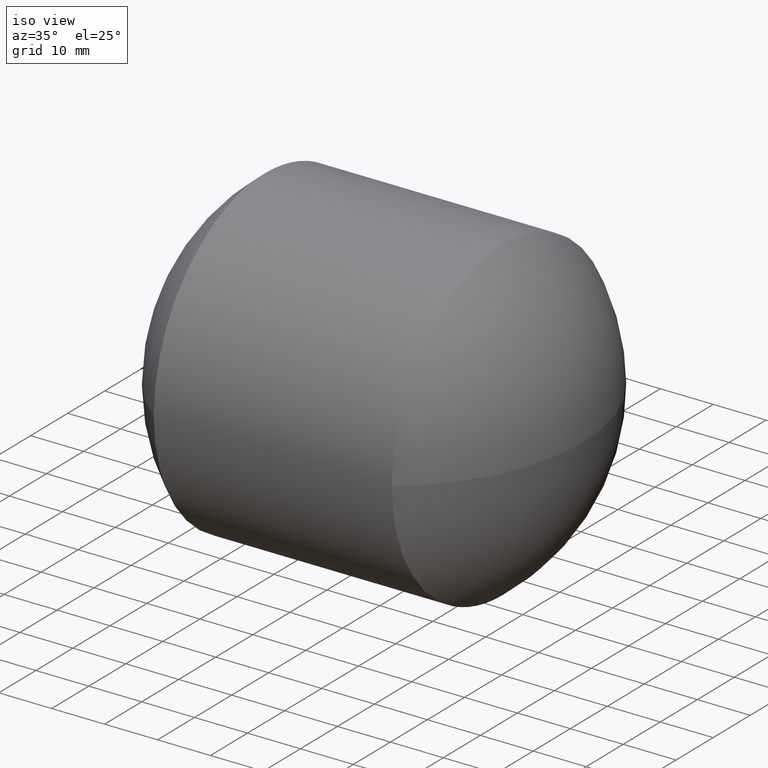
[diagram: clean part render]
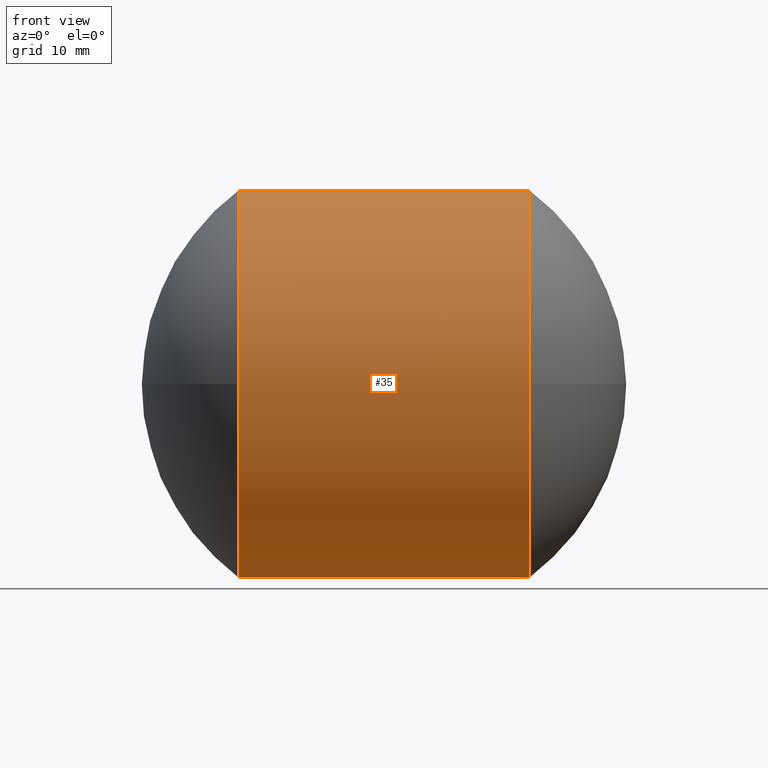
[diagram: tour spotlight — one face highlighted and labeled with its STEP entity id]
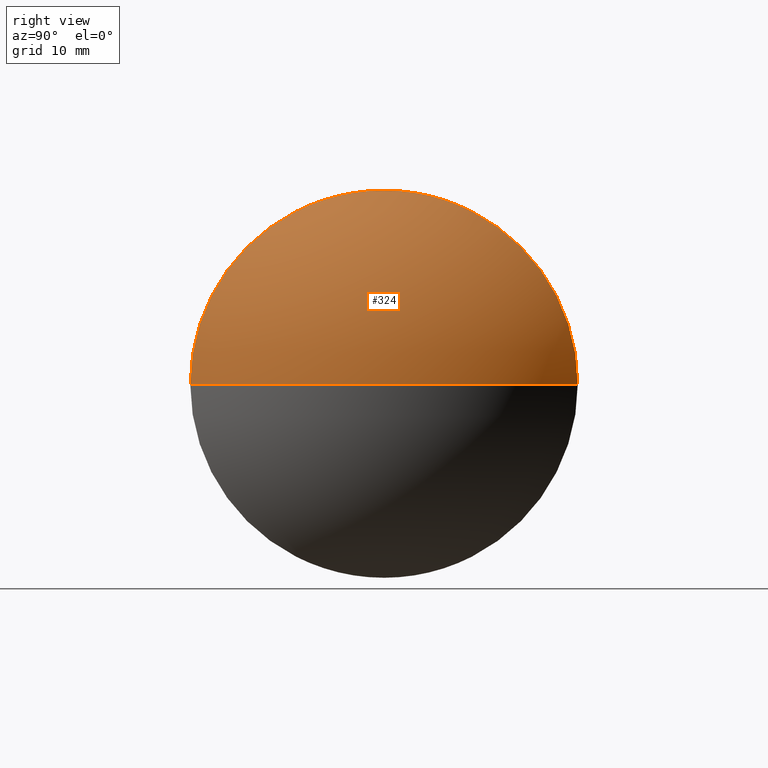
[diagram: tour spotlight — one face highlighted and labeled with its STEP entity id]
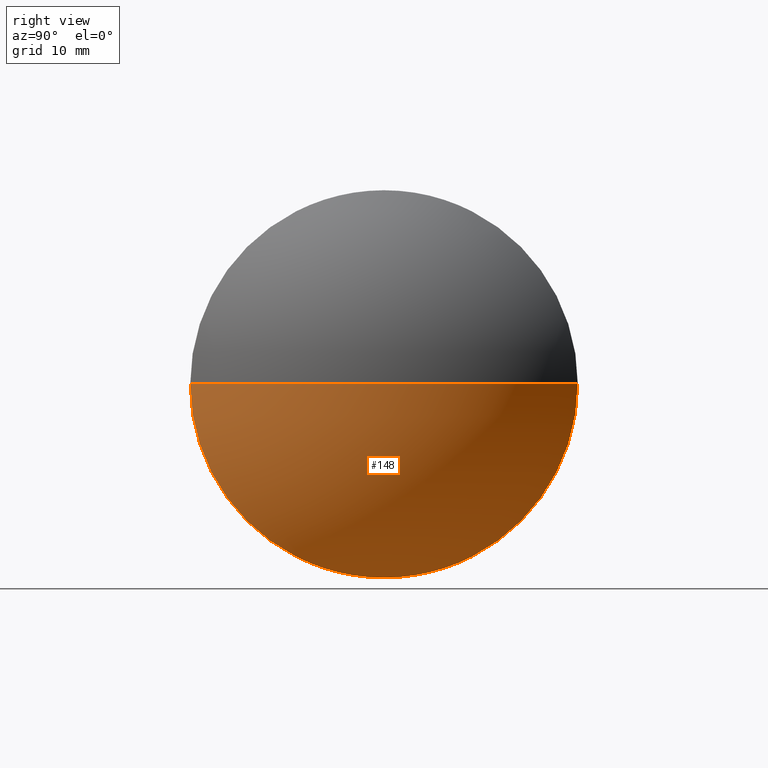
[diagram: tour spotlight — one face highlighted and labeled with its STEP entity id]
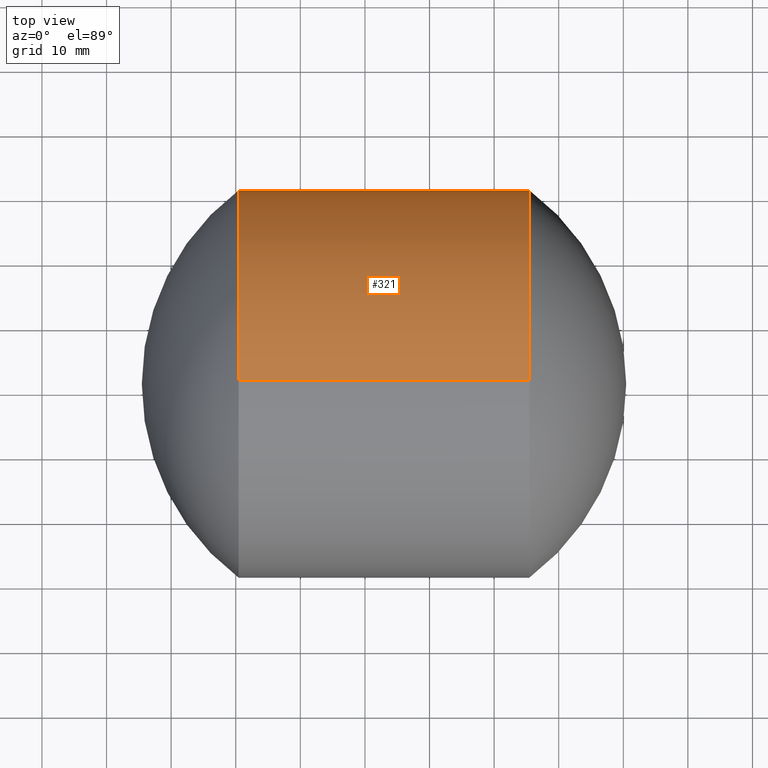
[diagram: tour spotlight — one face highlighted and labeled with its STEP entity id]
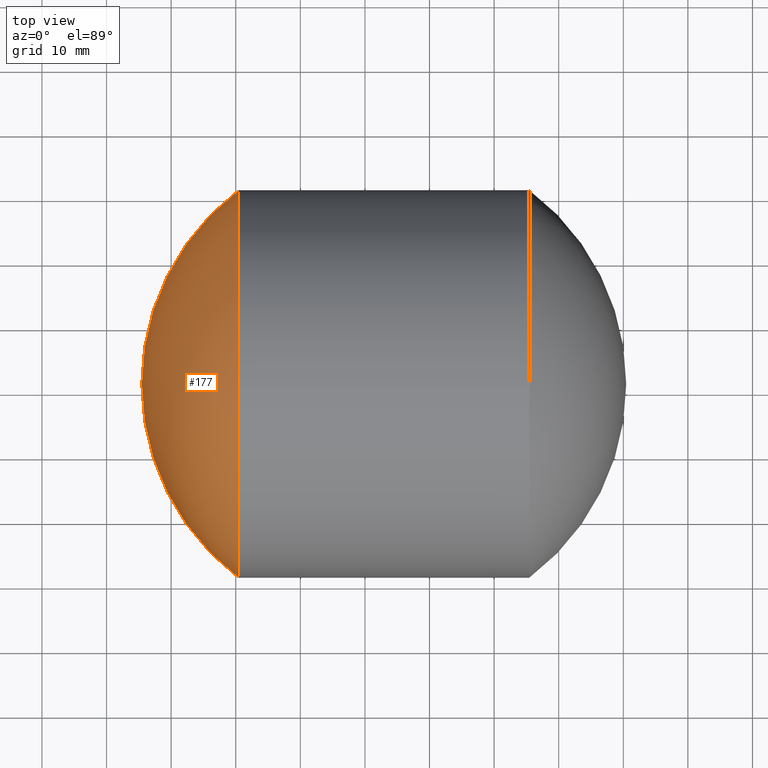
[diagram: tour spotlight — one face highlighted and labeled with its STEP entity id]
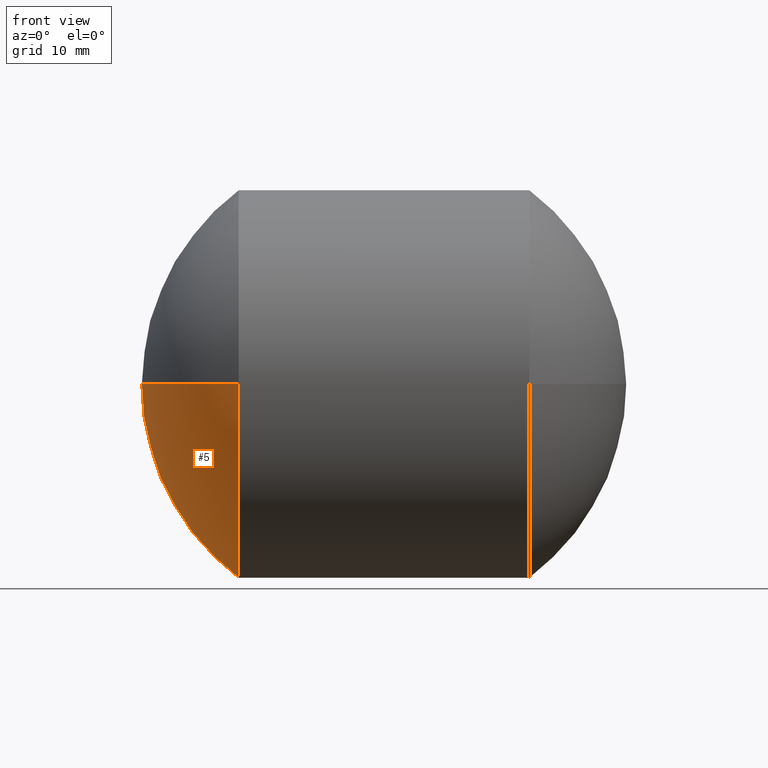
[diagram: tour spotlight — one face highlighted and labeled with its STEP entity id]
A machine part: a face-by-face anatomy tour. The part has 6 B-rep faces; the first image is the clean iso view, then the 6 largest visible faces are spotlighted one at a time (largest first), each with its STEP entity span.

Face 1 — front view, entity #35. In plain terms, the highlighted cylindrical surface (partial cylindrical patch) has radius 29.997 mm, axis along (-1, -0, -0).
Definition (entity closure, byte-faithful):
#1 = DIRECTION ( 'NONE',  ( -1.000000000000000000, -0.0000000000000000000, -0.0000000000000000000 ) ) ;
#6 = AXIS2_PLACEMENT_3D ( 'NONE', #30, #64, #172 ) ;
#14 = AXIS2_PLACEMENT_3D ( 'NONE', #259, #210, #273 ) ;
#18 = ORIENTED_EDGE ( 'NONE', *, *, #190, .F. ) ;
#24 = CARTESIAN_POINT ( 'NONE',  ( 3410.456490111853300, 1941.195797396160300, -29.99699999999982900 ) ) ;
#25 = CIRCLE ( 'NONE', #48, 29.99700000001004300 ) ;
#26 = CARTESIAN_POINT ( 'NONE',  ( 3389.118758004791700, 1941.195797396160300, 29.99700000000493800 ) ) ;
#30 = CARTESIAN_POINT ( 'NONE',  ( 3410.456490111853300, 1941.195797396160300, 0.0000000000000000000 ) ) ;
#35 = ADVANCED_FACE ( 'NONE', ( #158 ), #104, .T. ) ;
#38 = ORIENTED_EDGE ( 'NONE', *, *, #208, .T. ) ;
#40 = VECTOR ( 'NONE', #1, 1000.000000000000000 ) ;
#48 = AXIS2_PLACEMENT_3D ( 'NONE', #290, #341, #239 ) ;
#54 = VECTOR ( 'NONE', #320, 1000.000000000000000 ) ;
#57 = EDGE_CURVE ( 'NONE', #334, #108, #25, .T. ) ;
#64 = DIRECTION ( 'NONE',  ( -1.000000000000000000, -0.0000000000000000000, -0.0000000000000000000 ) ) ;
#74 = CARTESIAN_POINT ( 'NONE',  ( 3410.456490111853300, 1941.195797396160300, 29.99699999999982900 ) ) ;
#95 = CARTESIAN_POINT ( 'NONE',  ( 3410.456490111853300, 1911.198797396160400, -3.673573003402300800E-015 ) ) ;
#98 = VERTEX_POINT ( 'NONE', #24 ) ;
#102 = CIRCLE ( 'NONE', #122, 29.99699999999982900 ) ;
#104 = CYLINDRICAL_SURFACE ( 'NONE', #157, 29.99700000000493800 ) ;
#106 = ORIENTED_EDGE ( 'NONE', *, *, #110, .T. ) ;
#108 = VERTEX_POINT ( 'NONE', #340 ) ;
#110 = EDGE_CURVE ( 'NONE', #279, #284, #275, .T. ) ;
#112 = DIRECTION ( 'NONE',  ( -1.000000000000000000, -0.0000000000000000000, -0.0000000000000000000 ) ) ;
#122 = AXIS2_PLACEMENT_3D ( 'NONE', #304, #306, #153 ) ;
#142 = CARTESIAN_POINT ( 'NONE',  ( 3455.451990111839700, 1941.195797396160300, -29.99700000001004300 ) ) ;
#151 = CARTESIAN_POINT ( 'NONE',  ( 3455.451990111839700, 1941.195797396160300, 29.99700000001004300 ) ) ;
#153 = DIRECTION ( 'NONE',  ( 0.0000000000000000000, 0.0000000000000000000, 1.000000000000000000 ) ) ;
#155 = LINE ( 'NONE', #204, #54 ) ;
#157 = AXIS2_PLACEMENT_3D ( 'NONE', #342, #112, #166 ) ;
#158 = FACE_OUTER_BOUND ( 'NONE', #309, .T. ) ;
#166 = DIRECTION ( 'NONE',  ( 0.0000000000000000000, 0.0000000000000000000, 1.000000000000000000 ) ) ;
#172 = DIRECTION ( 'NONE',  ( 0.0000000000000000000, 0.0000000000000000000, 1.000000000000000000 ) ) ;
#178 = CIRCLE ( 'NONE', #6, 29.99699999999982900 ) ;
#190 = EDGE_CURVE ( 'NONE', #330, #284, #178, .T. ) ;
#196 = ORIENTED_EDGE ( 'NONE', *, *, #269, .F. ) ;
#204 = CARTESIAN_POINT ( 'NONE',  ( 3389.118758004791700, 1941.195797396160300, -29.99700000000493800 ) ) ;
#208 = EDGE_CURVE ( 'NONE', #108, #279, #262, .T. ) ;
#210 = DIRECTION ( 'NONE',  ( -1.000000000000000000, -0.0000000000000000000, -0.0000000000000000000 ) ) ;
#217 = ORIENTED_EDGE ( 'NONE', *, *, #339, .F. ) ;
#239 = DIRECTION ( 'NONE',  ( 0.0000000000000000000, 0.0000000000000000000, 1.000000000000000000 ) ) ;
#259 = CARTESIAN_POINT ( 'NONE',  ( 3455.451990111839700, 1941.195797396160300, 0.0000000000000000000 ) ) ;
#262 = CIRCLE ( 'NONE', #14, 29.99700000001004300 ) ;
#269 = EDGE_CURVE ( 'NONE', #98, #330, #102, .T. ) ;
#273 = DIRECTION ( 'NONE',  ( 0.0000000000000000000, 0.0000000000000000000, 1.000000000000000000 ) ) ;
#275 = LINE ( 'NONE', #26, #40 ) ;
#279 = VERTEX_POINT ( 'NONE', #151 ) ;
#284 = VERTEX_POINT ( 'NONE', #74 ) ;
#290 = CARTESIAN_POINT ( 'NONE',  ( 3455.451990111839700, 1941.195797396160300, 0.0000000000000000000 ) ) ;
#303 = ORIENTED_EDGE ( 'NONE', *, *, #57, .T. ) ;
#304 = CARTESIAN_POINT ( 'NONE',  ( 3410.456490111853300, 1941.195797396160300, 0.0000000000000000000 ) ) ;
#306 = DIRECTION ( 'NONE',  ( -1.000000000000000000, -0.0000000000000000000, -0.0000000000000000000 ) ) ;
#309 = EDGE_LOOP ( 'NONE', ( #217, #303, #38, #106, #18, #196 ) ) ;
#320 = DIRECTION ( 'NONE',  ( -1.000000000000000000, -0.0000000000000000000, -0.0000000000000000000 ) ) ;
#330 = VERTEX_POINT ( 'NONE', #95 ) ;
#334 = VERTEX_POINT ( 'NONE', #142 ) ;
#339 = EDGE_CURVE ( 'NONE', #334, #98, #155, .T. ) ;
#340 = CARTESIAN_POINT ( 'NONE',  ( 3455.451990111839700, 1911.198797396150200, -3.673573003403538500E-015 ) ) ;
#341 = DIRECTION ( 'NONE',  ( -1.000000000000000000, -0.0000000000000000000, -0.0000000000000000000 ) ) ;
#342 = CARTESIAN_POINT ( 'NONE',  ( 3389.118758004791700, 1941.195797396160300, 0.0000000000000000000 ) ) ;

Face 2 — right view, entity #324. In plain terms, the highlighted spherical surface has radius 37.4963 mm.
Definition (entity closure, byte-faithful):
#7 = CARTESIAN_POINT ( 'NONE',  ( 3432.954240111852900, 1941.195797396160300, 0.0000000000000000000 ) ) ;
#14 = AXIS2_PLACEMENT_3D ( 'NONE', #259, #210, #273 ) ;
#16 = EDGE_CURVE ( 'NONE', #103, #60, #129, .T. ) ;
#33 = CARTESIAN_POINT ( 'NONE',  ( 3455.451990111839700, 1941.195797396160300, 0.0000000000000000000 ) ) ;
#39 = DIRECTION ( 'NONE',  ( 0.0000000000000000000, 1.224646799147353200E-016, -1.000000000000000000 ) ) ;
#59 = DIRECTION ( 'NONE',  ( -0.0000000000000000000, 0.0000000000000000000, 1.000000000000000000 ) ) ;
#60 = VERTEX_POINT ( 'NONE', #87 ) ;
#69 = AXIS2_PLACEMENT_3D ( 'NONE', #80, #59, #193 ) ;
#72 = DIRECTION ( 'NONE',  ( 0.0000000000000000000, 1.000000000000000000, 1.224646799147350200E-016 ) ) ;
#76 = AXIS2_PLACEMENT_3D ( 'NONE', #7, #205, #139 ) ;
#80 = CARTESIAN_POINT ( 'NONE',  ( 3432.954240111852900, 1941.195797396160300, 0.0000000000000000000 ) ) ;
#87 = CARTESIAN_POINT ( 'NONE',  ( 3455.451990111839700, 1971.192797396170400, 0.0000000000000000000 ) ) ;
#101 = AXIS2_PLACEMENT_3D ( 'NONE', #33, #237, #174 ) ;
#103 = VERTEX_POINT ( 'NONE', #195 ) ;
#108 = VERTEX_POINT ( 'NONE', #340 ) ;
#125 = FACE_OUTER_BOUND ( 'NONE', #288, .T. ) ;
#129 = CIRCLE ( 'NONE', #69, 37.49625000000023100 ) ;
#132 = ORIENTED_EDGE ( 'NONE', *, *, #208, .F. ) ;
#139 = DIRECTION ( 'NONE',  ( 0.0000000000000000000, 1.000000000000000000, 0.0000000000000000000 ) ) ;
#151 = CARTESIAN_POINT ( 'NONE',  ( 3455.451990111839700, 1941.195797396160300, 29.99700000001004300 ) ) ;
#156 = ORIENTED_EDGE ( 'NONE', *, *, #16, .T. ) ;
#169 = EDGE_CURVE ( 'NONE', #103, #108, #285, .T. ) ;
#174 = DIRECTION ( 'NONE',  ( 0.0000000000000000000, 0.0000000000000000000, 1.000000000000000000 ) ) ;
#193 = DIRECTION ( 'NONE',  ( 1.000000000000000000, 0.0000000000000000000, 0.0000000000000000000 ) ) ;
#195 = CARTESIAN_POINT ( 'NONE',  ( 3470.450490111853000, 1941.195797396160300, 0.0000000000000000000 ) ) ;
#205 = DIRECTION ( 'NONE',  ( -0.0000000000000000000, 0.0000000000000000000, -1.000000000000000000 ) ) ;
#208 = EDGE_CURVE ( 'NONE', #108, #279, #262, .T. ) ;
#210 = DIRECTION ( 'NONE',  ( -1.000000000000000000, -0.0000000000000000000, -0.0000000000000000000 ) ) ;
#211 = SPHERICAL_SURFACE ( 'NONE', #76, 37.49625000000013800 ) ;
#214 = ORIENTED_EDGE ( 'NONE', *, *, #169, .F. ) ;
#228 = ORIENTED_EDGE ( 'NONE', *, *, #252, .F. ) ;
#237 = DIRECTION ( 'NONE',  ( -1.000000000000000000, -0.0000000000000000000, -0.0000000000000000000 ) ) ;
#248 = CARTESIAN_POINT ( 'NONE',  ( 3432.954240111852900, 1941.195797396160300, 0.0000000000000000000 ) ) ;
#249 = CIRCLE ( 'NONE', #101, 29.99700000001004300 ) ;
#252 = EDGE_CURVE ( 'NONE', #279, #60, #249, .T. ) ;
#259 = CARTESIAN_POINT ( 'NONE',  ( 3455.451990111839700, 1941.195797396160300, 0.0000000000000000000 ) ) ;
#262 = CIRCLE ( 'NONE', #14, 29.99700000001004300 ) ;
#273 = DIRECTION ( 'NONE',  ( 0.0000000000000000000, 0.0000000000000000000, 1.000000000000000000 ) ) ;
#279 = VERTEX_POINT ( 'NONE', #151 ) ;
#285 = CIRCLE ( 'NONE', #300, 37.49625000000023100 ) ;
#288 = EDGE_LOOP ( 'NONE', ( #214, #156, #228, #132 ) ) ;
#300 = AXIS2_PLACEMENT_3D ( 'NONE', #248, #39, #72 ) ;
#324 = ADVANCED_FACE ( 'NONE', ( #125 ), #211, .T. ) ;
#340 = CARTESIAN_POINT ( 'NONE',  ( 3455.451990111839700, 1911.198797396150200, -3.673573003403538500E-015 ) ) ;

Face 3 — right view, entity #148. In plain terms, the highlighted spherical surface has radius 37.4963 mm.
Definition (entity closure, byte-faithful):
#16 = EDGE_CURVE ( 'NONE', #103, #60, #129, .T. ) ;
#21 = EDGE_LOOP ( 'NONE', ( #310, #291, #215, #55 ) ) ;
#25 = CIRCLE ( 'NONE', #48, 29.99700000001004300 ) ;
#32 = CARTESIAN_POINT ( 'NONE',  ( 3432.954240111852900, 1941.195797396160300, 0.0000000000000000000 ) ) ;
#39 = DIRECTION ( 'NONE',  ( 0.0000000000000000000, 1.224646799147353200E-016, -1.000000000000000000 ) ) ;
#48 = AXIS2_PLACEMENT_3D ( 'NONE', #290, #341, #239 ) ;
#55 = ORIENTED_EDGE ( 'NONE', *, *, #111, .F. ) ;
#57 = EDGE_CURVE ( 'NONE', #334, #108, #25, .T. ) ;
#59 = DIRECTION ( 'NONE',  ( -0.0000000000000000000, 0.0000000000000000000, 1.000000000000000000 ) ) ;
#60 = VERTEX_POINT ( 'NONE', #87 ) ;
#66 = DIRECTION ( 'NONE',  ( -0.0000000000000000000, 0.0000000000000000000, -1.000000000000000000 ) ) ;
#69 = AXIS2_PLACEMENT_3D ( 'NONE', #80, #59, #193 ) ;
#72 = DIRECTION ( 'NONE',  ( 0.0000000000000000000, 1.000000000000000000, 1.224646799147350200E-016 ) ) ;
#80 = CARTESIAN_POINT ( 'NONE',  ( 3432.954240111852900, 1941.195797396160300, 0.0000000000000000000 ) ) ;
#81 = CIRCLE ( 'NONE', #218, 29.99700000001004300 ) ;
#87 = CARTESIAN_POINT ( 'NONE',  ( 3455.451990111839700, 1971.192797396170400, 0.0000000000000000000 ) ) ;
#103 = VERTEX_POINT ( 'NONE', #195 ) ;
#108 = VERTEX_POINT ( 'NONE', #340 ) ;
#111 = EDGE_CURVE ( 'NONE', #60, #334, #81, .T. ) ;
#119 = CARTESIAN_POINT ( 'NONE',  ( 3455.451990111839700, 1941.195797396160300, 0.0000000000000000000 ) ) ;
#129 = CIRCLE ( 'NONE', #69, 37.49625000000023100 ) ;
#140 = DIRECTION ( 'NONE',  ( 0.0000000000000000000, 1.000000000000000000, 0.0000000000000000000 ) ) ;
#142 = CARTESIAN_POINT ( 'NONE',  ( 3455.451990111839700, 1941.195797396160300, -29.99700000001004300 ) ) ;
#143 = SPHERICAL_SURFACE ( 'NONE', #213, 37.49625000000013800 ) ;
#148 = ADVANCED_FACE ( 'NONE', ( #182 ), #143, .T. ) ;
#169 = EDGE_CURVE ( 'NONE', #103, #108, #285, .T. ) ;
#182 = FACE_OUTER_BOUND ( 'NONE', #21, .T. ) ;
#193 = DIRECTION ( 'NONE',  ( 1.000000000000000000, 0.0000000000000000000, 0.0000000000000000000 ) ) ;
#195 = CARTESIAN_POINT ( 'NONE',  ( 3470.450490111853000, 1941.195797396160300, 0.0000000000000000000 ) ) ;
#201 = DIRECTION ( 'NONE',  ( 0.0000000000000000000, 0.0000000000000000000, 1.000000000000000000 ) ) ;
#213 = AXIS2_PLACEMENT_3D ( 'NONE', #32, #66, #140 ) ;
#215 = ORIENTED_EDGE ( 'NONE', *, *, #57, .F. ) ;
#218 = AXIS2_PLACEMENT_3D ( 'NONE', #119, #296, #201 ) ;
#239 = DIRECTION ( 'NONE',  ( 0.0000000000000000000, 0.0000000000000000000, 1.000000000000000000 ) ) ;
#248 = CARTESIAN_POINT ( 'NONE',  ( 3432.954240111852900, 1941.195797396160300, 0.0000000000000000000 ) ) ;
#285 = CIRCLE ( 'NONE', #300, 37.49625000000023100 ) ;
#290 = CARTESIAN_POINT ( 'NONE',  ( 3455.451990111839700, 1941.195797396160300, 0.0000000000000000000 ) ) ;
#291 = ORIENTED_EDGE ( 'NONE', *, *, #169, .T. ) ;
#296 = DIRECTION ( 'NONE',  ( -1.000000000000000000, -0.0000000000000000000, -0.0000000000000000000 ) ) ;
#300 = AXIS2_PLACEMENT_3D ( 'NONE', #248, #39, #72 ) ;
#310 = ORIENTED_EDGE ( 'NONE', *, *, #16, .F. ) ;
#334 = VERTEX_POINT ( 'NONE', #142 ) ;
#340 = CARTESIAN_POINT ( 'NONE',  ( 3455.451990111839700, 1911.198797396150200, -3.673573003403538500E-015 ) ) ;
#341 = DIRECTION ( 'NONE',  ( -1.000000000000000000, -0.0000000000000000000, -0.0000000000000000000 ) ) ;

Face 4 — top view, entity #321. In plain terms, the highlighted cylindrical surface (partial cylindrical patch) has radius 29.997 mm, axis along (-1, -0, -0).
Definition (entity closure, byte-faithful):
#1 = DIRECTION ( 'NONE',  ( -1.000000000000000000, -0.0000000000000000000, -0.0000000000000000000 ) ) ;
#13 = DIRECTION ( 'NONE',  ( 0.0000000000000000000, 0.0000000000000000000, 1.000000000000000000 ) ) ;
#17 = VERTEX_POINT ( 'NONE', #135 ) ;
#24 = CARTESIAN_POINT ( 'NONE',  ( 3410.456490111853300, 1941.195797396160300, -29.99699999999982900 ) ) ;
#26 = CARTESIAN_POINT ( 'NONE',  ( 3389.118758004791700, 1941.195797396160300, 29.99700000000493800 ) ) ;
#33 = CARTESIAN_POINT ( 'NONE',  ( 3455.451990111839700, 1941.195797396160300, 0.0000000000000000000 ) ) ;
#40 = VECTOR ( 'NONE', #1, 1000.000000000000000 ) ;
#45 = DIRECTION ( 'NONE',  ( 0.0000000000000000000, 0.0000000000000000000, 1.000000000000000000 ) ) ;
#54 = VECTOR ( 'NONE', #320, 1000.000000000000000 ) ;
#56 = AXIS2_PLACEMENT_3D ( 'NONE', #255, #185, #257 ) ;
#60 = VERTEX_POINT ( 'NONE', #87 ) ;
#74 = CARTESIAN_POINT ( 'NONE',  ( 3410.456490111853300, 1941.195797396160300, 29.99699999999982900 ) ) ;
#81 = CIRCLE ( 'NONE', #218, 29.99700000001004300 ) ;
#87 = CARTESIAN_POINT ( 'NONE',  ( 3455.451990111839700, 1971.192797396170400, 0.0000000000000000000 ) ) ;
#89 = FACE_OUTER_BOUND ( 'NONE', #97, .T. ) ;
#97 = EDGE_LOOP ( 'NONE', ( #251, #116, #240, #115, #121, #181 ) ) ;
#98 = VERTEX_POINT ( 'NONE', #24 ) ;
#101 = AXIS2_PLACEMENT_3D ( 'NONE', #33, #237, #174 ) ;
#110 = EDGE_CURVE ( 'NONE', #279, #284, #275, .T. ) ;
#111 = EDGE_CURVE ( 'NONE', #60, #334, #81, .T. ) ;
#115 = ORIENTED_EDGE ( 'NONE', *, *, #165, .F. ) ;
#116 = ORIENTED_EDGE ( 'NONE', *, *, #339, .T. ) ;
#117 = DIRECTION ( 'NONE',  ( -1.000000000000000000, -0.0000000000000000000, -0.0000000000000000000 ) ) ;
#119 = CARTESIAN_POINT ( 'NONE',  ( 3455.451990111839700, 1941.195797396160300, 0.0000000000000000000 ) ) ;
#121 = ORIENTED_EDGE ( 'NONE', *, *, #110, .F. ) ;
#135 = CARTESIAN_POINT ( 'NONE',  ( 3410.456490111853300, 1971.192797396160100, 0.0000000000000000000 ) ) ;
#142 = CARTESIAN_POINT ( 'NONE',  ( 3455.451990111839700, 1941.195797396160300, -29.99700000001004300 ) ) ;
#151 = CARTESIAN_POINT ( 'NONE',  ( 3455.451990111839700, 1941.195797396160300, 29.99700000001004300 ) ) ;
#152 = CIRCLE ( 'NONE', #162, 29.99699999999982900 ) ;
#155 = LINE ( 'NONE', #204, #54 ) ;
#162 = AXIS2_PLACEMENT_3D ( 'NONE', #244, #117, #13 ) ;
#165 = EDGE_CURVE ( 'NONE', #284, #17, #152, .T. ) ;
#174 = DIRECTION ( 'NONE',  ( 0.0000000000000000000, 0.0000000000000000000, 1.000000000000000000 ) ) ;
#181 = ORIENTED_EDGE ( 'NONE', *, *, #252, .T. ) ;
#185 = DIRECTION ( 'NONE',  ( -1.000000000000000000, -0.0000000000000000000, -0.0000000000000000000 ) ) ;
#201 = DIRECTION ( 'NONE',  ( 0.0000000000000000000, 0.0000000000000000000, 1.000000000000000000 ) ) ;
#204 = CARTESIAN_POINT ( 'NONE',  ( 3389.118758004791700, 1941.195797396160300, -29.99700000000493800 ) ) ;
#206 = DIRECTION ( 'NONE',  ( -1.000000000000000000, -0.0000000000000000000, -0.0000000000000000000 ) ) ;
#218 = AXIS2_PLACEMENT_3D ( 'NONE', #119, #296, #201 ) ;
#231 = CARTESIAN_POINT ( 'NONE',  ( 3410.456490111853300, 1941.195797396160300, 0.0000000000000000000 ) ) ;
#233 = AXIS2_PLACEMENT_3D ( 'NONE', #231, #206, #45 ) ;
#237 = DIRECTION ( 'NONE',  ( -1.000000000000000000, -0.0000000000000000000, -0.0000000000000000000 ) ) ;
#240 = ORIENTED_EDGE ( 'NONE', *, *, #308, .F. ) ;
#244 = CARTESIAN_POINT ( 'NONE',  ( 3410.456490111853300, 1941.195797396160300, 0.0000000000000000000 ) ) ;
#249 = CIRCLE ( 'NONE', #101, 29.99700000001004300 ) ;
#251 = ORIENTED_EDGE ( 'NONE', *, *, #111, .T. ) ;
#252 = EDGE_CURVE ( 'NONE', #279, #60, #249, .T. ) ;
#255 = CARTESIAN_POINT ( 'NONE',  ( 3389.118758004791700, 1941.195797396160300, 0.0000000000000000000 ) ) ;
#257 = DIRECTION ( 'NONE',  ( 0.0000000000000000000, 0.0000000000000000000, 1.000000000000000000 ) ) ;
#265 = CYLINDRICAL_SURFACE ( 'NONE', #56, 29.99700000000493800 ) ;
#275 = LINE ( 'NONE', #26, #40 ) ;
#279 = VERTEX_POINT ( 'NONE', #151 ) ;
#284 = VERTEX_POINT ( 'NONE', #74 ) ;
#296 = DIRECTION ( 'NONE',  ( -1.000000000000000000, -0.0000000000000000000, -0.0000000000000000000 ) ) ;
#308 = EDGE_CURVE ( 'NONE', #17, #98, #332, .T. ) ;
#320 = DIRECTION ( 'NONE',  ( -1.000000000000000000, -0.0000000000000000000, -0.0000000000000000000 ) ) ;
#321 = ADVANCED_FACE ( 'NONE', ( #89 ), #265, .T. ) ;
#332 = CIRCLE ( 'NONE', #233, 29.99699999999982900 ) ;
#334 = VERTEX_POINT ( 'NONE', #142 ) ;
#339 = EDGE_CURVE ( 'NONE', #334, #98, #155, .T. ) ;

Face 5 — top view, entity #177. In plain terms, the highlighted spherical surface has radius 37.4962 mm.
Definition (entity closure, byte-faithful):
#6 = AXIS2_PLACEMENT_3D ( 'NONE', #30, #64, #172 ) ;
#9 = CARTESIAN_POINT ( 'NONE',  ( 3432.954240111852900, 1941.195797396160300, 0.0000000000000000000 ) ) ;
#13 = DIRECTION ( 'NONE',  ( 0.0000000000000000000, 0.0000000000000000000, 1.000000000000000000 ) ) ;
#17 = VERTEX_POINT ( 'NONE', #135 ) ;
#30 = CARTESIAN_POINT ( 'NONE',  ( 3410.456490111853300, 1941.195797396160300, 0.0000000000000000000 ) ) ;
#34 = DIRECTION ( 'NONE',  ( -0.0000000000000000000, 0.0000000000000000000, -1.000000000000000000 ) ) ;
#53 = ORIENTED_EDGE ( 'NONE', *, *, #165, .T. ) ;
#61 = DIRECTION ( 'NONE',  ( 0.0000000000000000000, 1.000000000000000000, 1.224646799147354700E-016 ) ) ;
#64 = DIRECTION ( 'NONE',  ( -1.000000000000000000, -0.0000000000000000000, -0.0000000000000000000 ) ) ;
#74 = CARTESIAN_POINT ( 'NONE',  ( 3410.456490111853300, 1941.195797396160300, 29.99699999999982900 ) ) ;
#79 = AXIS2_PLACEMENT_3D ( 'NONE', #238, #225, #61 ) ;
#90 = EDGE_LOOP ( 'NONE', ( #271, #209, #53, #187 ) ) ;
#95 = CARTESIAN_POINT ( 'NONE',  ( 3410.456490111853300, 1911.198797396160400, -3.673573003402300800E-015 ) ) ;
#107 = EDGE_CURVE ( 'NONE', #330, #167, #136, .T. ) ;
#117 = DIRECTION ( 'NONE',  ( -1.000000000000000000, -0.0000000000000000000, -0.0000000000000000000 ) ) ;
#124 = DIRECTION ( 'NONE',  ( -0.0000000000000000000, 0.0000000000000000000, 1.000000000000000000 ) ) ;
#128 = AXIS2_PLACEMENT_3D ( 'NONE', #9, #124, #278 ) ;
#134 = AXIS2_PLACEMENT_3D ( 'NONE', #150, #34, #329 ) ;
#135 = CARTESIAN_POINT ( 'NONE',  ( 3410.456490111853300, 1971.192797396160100, 0.0000000000000000000 ) ) ;
#136 = CIRCLE ( 'NONE', #79, 37.49624999999956300 ) ;
#150 = CARTESIAN_POINT ( 'NONE',  ( 3432.954240111852900, 1941.195797396160300, 0.0000000000000000000 ) ) ;
#152 = CIRCLE ( 'NONE', #162, 29.99699999999982900 ) ;
#161 = FACE_OUTER_BOUND ( 'NONE', #90, .T. ) ;
#162 = AXIS2_PLACEMENT_3D ( 'NONE', #244, #117, #13 ) ;
#165 = EDGE_CURVE ( 'NONE', #284, #17, #152, .T. ) ;
#167 = VERTEX_POINT ( 'NONE', #183 ) ;
#172 = DIRECTION ( 'NONE',  ( 0.0000000000000000000, 0.0000000000000000000, 1.000000000000000000 ) ) ;
#177 = ADVANCED_FACE ( 'NONE', ( #161 ), #221, .T. ) ;
#178 = CIRCLE ( 'NONE', #6, 29.99699999999982900 ) ;
#183 = CARTESIAN_POINT ( 'NONE',  ( 3395.457990111852700, 1941.195797396160300, 0.0000000000000000000 ) ) ;
#187 = ORIENTED_EDGE ( 'NONE', *, *, #319, .T. ) ;
#190 = EDGE_CURVE ( 'NONE', #330, #284, #178, .T. ) ;
#209 = ORIENTED_EDGE ( 'NONE', *, *, #190, .T. ) ;
#221 = SPHERICAL_SURFACE ( 'NONE', #134, 37.49624999999960600 ) ;
#225 = DIRECTION ( 'NONE',  ( 0.0000000000000000000, 1.224646799147353200E-016, -1.000000000000000000 ) ) ;
#238 = CARTESIAN_POINT ( 'NONE',  ( 3432.954240111852900, 1941.195797396160300, 0.0000000000000000000 ) ) ;
#244 = CARTESIAN_POINT ( 'NONE',  ( 3410.456490111853300, 1941.195797396160300, 0.0000000000000000000 ) ) ;
#271 = ORIENTED_EDGE ( 'NONE', *, *, #107, .F. ) ;
#278 = DIRECTION ( 'NONE',  ( 1.000000000000000000, 0.0000000000000000000, 0.0000000000000000000 ) ) ;
#284 = VERTEX_POINT ( 'NONE', #74 ) ;
#319 = EDGE_CURVE ( 'NONE', #17, #167, #323, .T. ) ;
#323 = CIRCLE ( 'NONE', #128, 37.49624999999979000 ) ;
#329 = DIRECTION ( 'NONE',  ( 0.0000000000000000000, 1.000000000000000000, 0.0000000000000000000 ) ) ;
#330 = VERTEX_POINT ( 'NONE', #95 ) ;

Face 6 — front view, entity #5. In plain terms, the highlighted spherical surface has radius 37.4962 mm.
Definition (entity closure, byte-faithful):
#5 = ADVANCED_FACE ( 'NONE', ( #49 ), #316, .T. ) ;
#9 = CARTESIAN_POINT ( 'NONE',  ( 3432.954240111852900, 1941.195797396160300, 0.0000000000000000000 ) ) ;
#17 = VERTEX_POINT ( 'NONE', #135 ) ;
#24 = CARTESIAN_POINT ( 'NONE',  ( 3410.456490111853300, 1941.195797396160300, -29.99699999999982900 ) ) ;
#45 = DIRECTION ( 'NONE',  ( 0.0000000000000000000, 0.0000000000000000000, 1.000000000000000000 ) ) ;
#46 = ORIENTED_EDGE ( 'NONE', *, *, #107, .T. ) ;
#49 = FACE_OUTER_BOUND ( 'NONE', #236, .T. ) ;
#61 = DIRECTION ( 'NONE',  ( 0.0000000000000000000, 1.000000000000000000, 1.224646799147354700E-016 ) ) ;
#79 = AXIS2_PLACEMENT_3D ( 'NONE', #238, #225, #61 ) ;
#84 = DIRECTION ( 'NONE',  ( -0.0000000000000000000, 0.0000000000000000000, -1.000000000000000000 ) ) ;
#95 = CARTESIAN_POINT ( 'NONE',  ( 3410.456490111853300, 1911.198797396160400, -3.673573003402300800E-015 ) ) ;
#96 = ORIENTED_EDGE ( 'NONE', *, *, #308, .T. ) ;
#98 = VERTEX_POINT ( 'NONE', #24 ) ;
#102 = CIRCLE ( 'NONE', #122, 29.99699999999982900 ) ;
#107 = EDGE_CURVE ( 'NONE', #330, #167, #136, .T. ) ;
#122 = AXIS2_PLACEMENT_3D ( 'NONE', #304, #306, #153 ) ;
#124 = DIRECTION ( 'NONE',  ( -0.0000000000000000000, 0.0000000000000000000, 1.000000000000000000 ) ) ;
#128 = AXIS2_PLACEMENT_3D ( 'NONE', #9, #124, #278 ) ;
#135 = CARTESIAN_POINT ( 'NONE',  ( 3410.456490111853300, 1971.192797396160100, 0.0000000000000000000 ) ) ;
#136 = CIRCLE ( 'NONE', #79, 37.49624999999956300 ) ;
#153 = DIRECTION ( 'NONE',  ( 0.0000000000000000000, 0.0000000000000000000, 1.000000000000000000 ) ) ;
#167 = VERTEX_POINT ( 'NONE', #183 ) ;
#170 = DIRECTION ( 'NONE',  ( 0.0000000000000000000, 1.000000000000000000, 0.0000000000000000000 ) ) ;
#183 = CARTESIAN_POINT ( 'NONE',  ( 3395.457990111852700, 1941.195797396160300, 0.0000000000000000000 ) ) ;
#206 = DIRECTION ( 'NONE',  ( -1.000000000000000000, -0.0000000000000000000, -0.0000000000000000000 ) ) ;
#225 = DIRECTION ( 'NONE',  ( 0.0000000000000000000, 1.224646799147353200E-016, -1.000000000000000000 ) ) ;
#231 = CARTESIAN_POINT ( 'NONE',  ( 3410.456490111853300, 1941.195797396160300, 0.0000000000000000000 ) ) ;
#233 = AXIS2_PLACEMENT_3D ( 'NONE', #231, #206, #45 ) ;
#234 = ORIENTED_EDGE ( 'NONE', *, *, #319, .F. ) ;
#236 = EDGE_LOOP ( 'NONE', ( #96, #241, #46, #234 ) ) ;
#238 = CARTESIAN_POINT ( 'NONE',  ( 3432.954240111852900, 1941.195797396160300, 0.0000000000000000000 ) ) ;
#241 = ORIENTED_EDGE ( 'NONE', *, *, #269, .T. ) ;
#269 = EDGE_CURVE ( 'NONE', #98, #330, #102, .T. ) ;
#278 = DIRECTION ( 'NONE',  ( 1.000000000000000000, 0.0000000000000000000, 0.0000000000000000000 ) ) ;
#281 = AXIS2_PLACEMENT_3D ( 'NONE', #293, #84, #170 ) ;
#293 = CARTESIAN_POINT ( 'NONE',  ( 3432.954240111852900, 1941.195797396160300, 0.0000000000000000000 ) ) ;
#304 = CARTESIAN_POINT ( 'NONE',  ( 3410.456490111853300, 1941.195797396160300, 0.0000000000000000000 ) ) ;
#306 = DIRECTION ( 'NONE',  ( -1.000000000000000000, -0.0000000000000000000, -0.0000000000000000000 ) ) ;
#308 = EDGE_CURVE ( 'NONE', #17, #98, #332, .T. ) ;
#316 = SPHERICAL_SURFACE ( 'NONE', #281, 37.49624999999960600 ) ;
#319 = EDGE_CURVE ( 'NONE', #17, #167, #323, .T. ) ;
#323 = CIRCLE ( 'NONE', #128, 37.49624999999979000 ) ;
#330 = VERTEX_POINT ( 'NONE', #95 ) ;
#332 = CIRCLE ( 'NONE', #233, 29.99699999999982900 ) ;